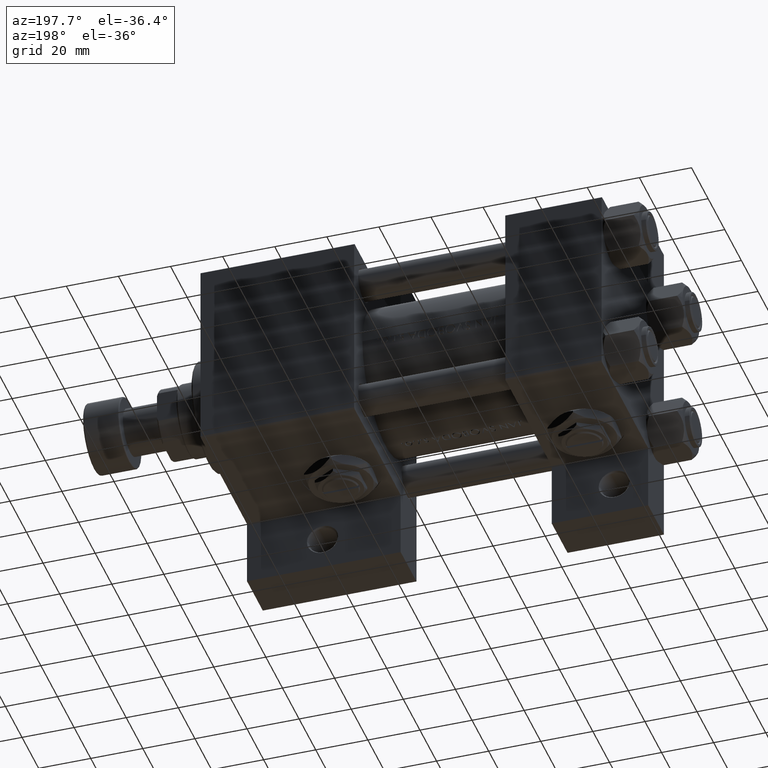
[diagram: clean part render]
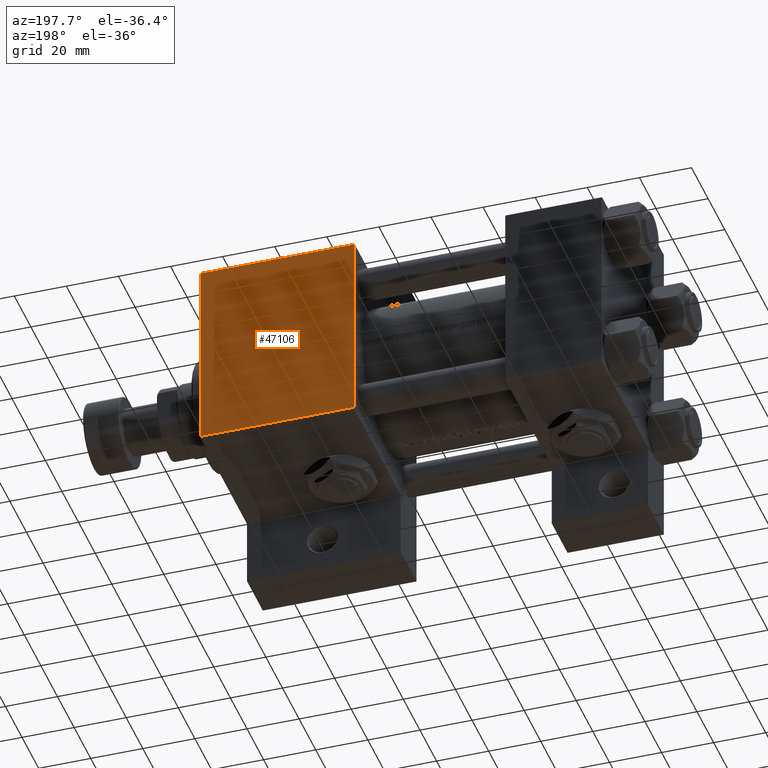
[diagram: same view with one face highlighted and labeled with its STEP entity id]
A machine part, auxiliary view. The second image highlights one B-rep face of the part: STEP entity #47106.
In plain terms, the highlighted planar face has unit normal (0, -1, -0).
Its self-contained STEP definition (entity closure, byte-faithful):
#4588 = VERTEX_POINT ( 'NONE', #38983 ) ;
#5801 = LINE ( 'NONE', #22199, #22972 ) ;
#8002 = VERTEX_POINT ( 'NONE', #40570 ) ;
#8430 = VECTOR ( 'NONE', #26792, 1000.000000000000000 ) ;
#12548 = ORIENTED_EDGE ( 'NONE', *, *, #12851, .T. ) ;
#12851 = EDGE_CURVE ( 'NONE', #4588, #27791, #26289, .T. ) ;
#12884 = DIRECTION ( 'NONE',  ( 0.000000000000000000, 1.850371707708594316E-16, -1.000000000000000000 ) ) ;
#13988 = EDGE_CURVE ( 'NONE', #8002, #27791, #5801, .T. ) ;
#14112 = LINE ( 'NONE', #25244, #44101 ) ;
#14399 = DIRECTION ( 'NONE',  ( -1.000000000000000000, 0.000000000000000000, 0.000000000000000000 ) ) ;
#16683 = FACE_OUTER_BOUND ( 'NONE', #21767, .T. ) ;
#17909 = DIRECTION ( 'NONE',  ( 0.000000000000000000, -1.000000000000000000, -1.850371707708594316E-16 ) ) ;
#18461 = AXIS2_PLACEMENT_3D ( 'NONE', #27544, #12884, #42978 ) ;
#21767 = EDGE_LOOP ( 'NONE', ( #24188, #46531, #32950, #12548 ) ) ;
#21911 = EDGE_CURVE ( 'NONE', #8002, #47713, #29819, .T. ) ;
#22199 = CARTESIAN_POINT ( 'NONE',  ( 154.0000000000000000, 37.50000000000000000, 37.49999999999999289 ) ) ;
#22972 = VECTOR ( 'NONE', #49272, 1000.000000000000000 ) ;
#24188 = ORIENTED_EDGE ( 'NONE', *, *, #13988, .F. ) ;
#25244 = CARTESIAN_POINT ( 'NONE',  ( 95.00000000000000000, 37.50000000000000000, 37.49999999999999289 ) ) ;
#26289 = LINE ( 'NONE', #41717, #8430 ) ;
#26792 = DIRECTION ( 'NONE',  ( 1.000000000000000000, 0.000000000000000000, 0.000000000000000000 ) ) ;
#27544 = CARTESIAN_POINT ( 'NONE',  ( 154.0000000000000000, 37.50000000000000000, 37.49999999999999289 ) ) ;
#27791 = VERTEX_POINT ( 'NONE', #41936 ) ;
#29324 = CARTESIAN_POINT ( 'NONE',  ( 95.00000000000000000, 37.00000000000000000, 37.49999999999999289 ) ) ;
#29819 = LINE ( 'NONE', #29324, #45766 ) ;
#32099 = PLANE ( 'NONE',  #18461 ) ;
#32950 = ORIENTED_EDGE ( 'NONE', *, *, #37485, .T. ) ;
#37485 = EDGE_CURVE ( 'NONE', #47713, #4588, #14112, .T. ) ;
#38983 = CARTESIAN_POINT ( 'NONE',  ( 95.00000000000000000, -36.99999999999997158, 37.49999999999997868 ) ) ;
#40570 = CARTESIAN_POINT ( 'NONE',  ( 154.0000000000000000, 37.00000000000000000, 37.49999999999999289 ) ) ;
#41717 = CARTESIAN_POINT ( 'NONE',  ( 154.0000000000000000, -36.99999999999997158, 37.49999999999997868 ) ) ;
#41936 = CARTESIAN_POINT ( 'NONE',  ( 154.0000000000000000, -36.99999999999997158, 37.49999999999997868 ) ) ;
#42978 = DIRECTION ( 'NONE',  ( 0.000000000000000000, 1.000000000000000000, 1.850371707708594316E-16 ) ) ;
#43297 = CARTESIAN_POINT ( 'NONE',  ( 95.00000000000000000, 37.00000000000000000, 37.49999999999999289 ) ) ;
#44101 = VECTOR ( 'NONE', #17909, 1000.000000000000000 ) ;
#45766 = VECTOR ( 'NONE', #14399, 1000.000000000000000 ) ;
#46531 = ORIENTED_EDGE ( 'NONE', *, *, #21911, .T. ) ;
#47106 = ADVANCED_FACE ( 'NONE', ( #16683 ), #32099, .F. ) ;
#47713 = VERTEX_POINT ( 'NONE', #43297 ) ;
#49272 = DIRECTION ( 'NONE',  ( 0.000000000000000000, -1.000000000000000000, -1.850371707708594316E-16 ) ) ;